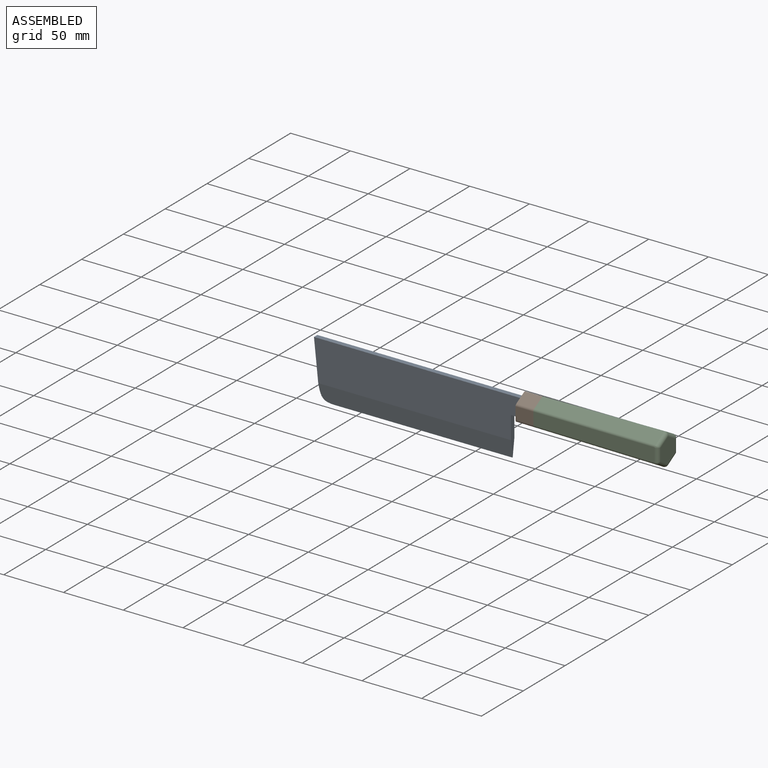
[diagram: assembled view]
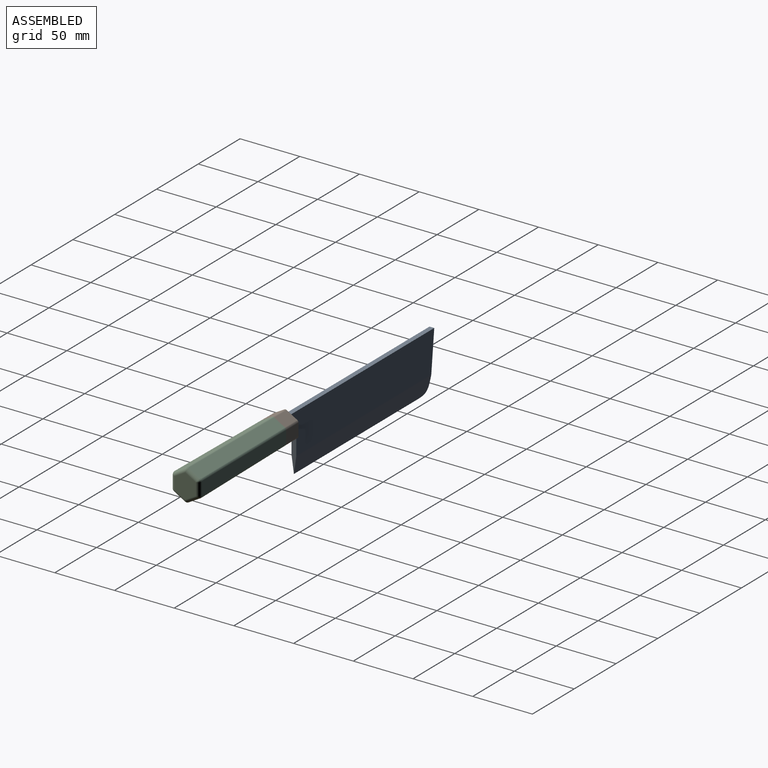
[diagram: assembled view, second angle]
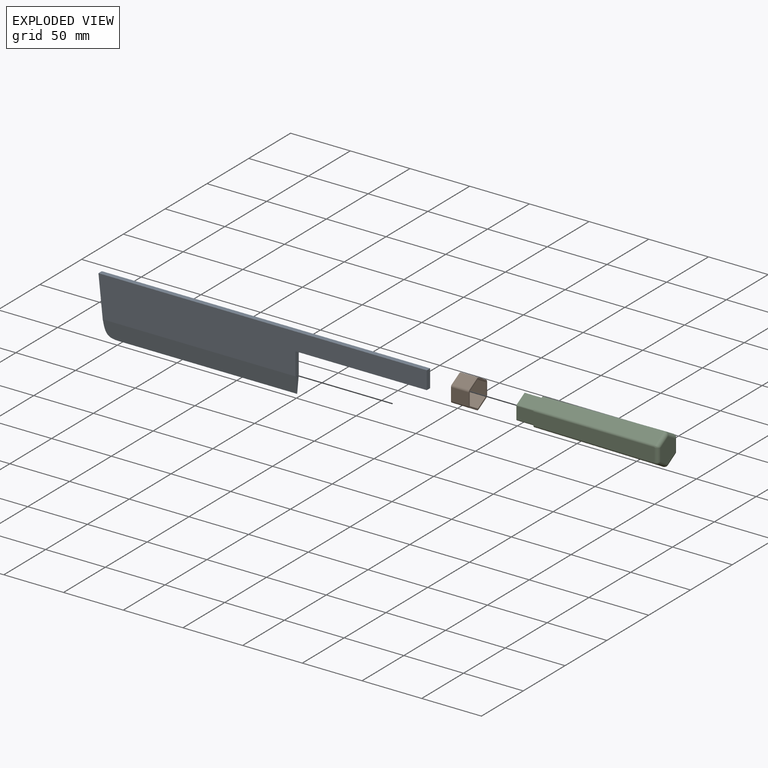
[diagram: exploded view]
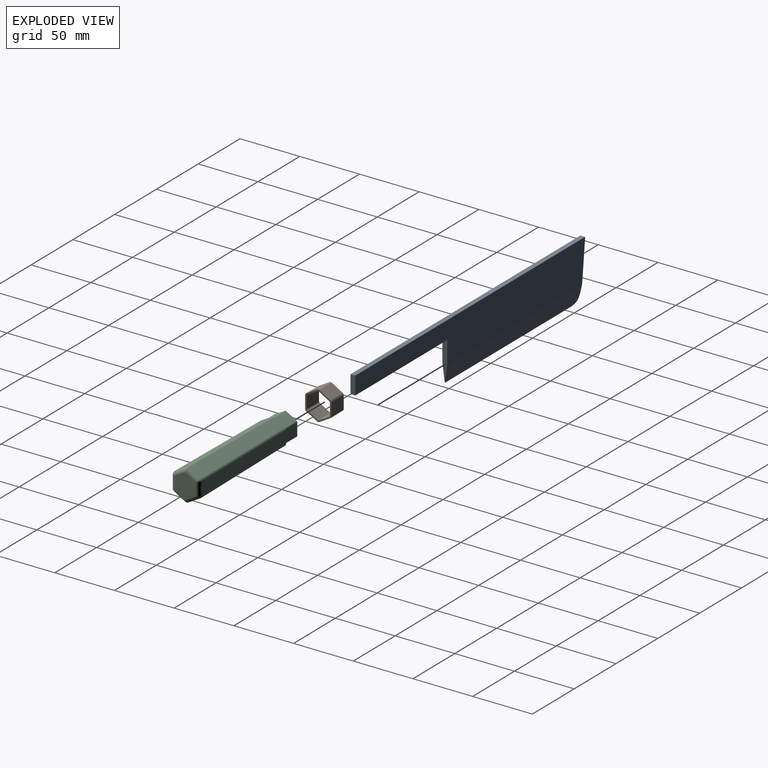
[diagram: exploded view, second angle]
ASSEMBLY  parts=3 mates=2
PART A: 10 faces, bbox 275x4x48 mm
  f0: plane 275x34mm, normal (0,-1,0), area 7199.2mm2, adj f1,f3,f5,f6,f7,f9
  f1: plane 37x4mm, normal (-0.99,0,-0.1), area 147.5mm2, adj f0,f2,f4,f5,f8,f9
  f2: extruded ~12.11x11mm, area 19mm2, adj f1,f8,f9
  f3: plane 33x4mm, normal (1,0,0), area 104mm2, adj f0,f4,f6,f8,f9
  f4: plane 275x34mm, normal (0,1,0), area 7199.2mm2, adj f1,f3,f5,f6,f7,f8
  f5: plane 275x4mm, normal (0,0,1), area 1100mm2, adj f0,f1,f4,f7
  f6: plane 110x4mm, normal (0,0,-1), area 440mm2, adj f0,f3,f4,f7
  f7: plane 15x4mm, normal (1,0,0), area 60mm2, adj f0,f4,f5,f6
  f8: plane 161.43x14mm, normal (0,0.99,-0.14), area 2258.3mm2, adj f1,f2,f3,f4,f9
  f9: plane 161.43x14mm, normal (0,-0.99,-0.14), area 2258.3mm2, adj f0,f1,f2,f3,f8
PART B: 26 faces, bbox 18x22x24.7 mm
  f0: plane 24.65x21.92mm, normal (1,0,0), area 89mm2, adj f1,f2,f3,f4,f5,f6,f7,f8
  f1: plane 15x10.19mm, normal (-0.01,-1,0), area 152.9mm2, adj f0,f2,f24,f25
  f2: bspline ~18x2.99mm, area 32.4mm2, adj f0,f1,f3,f25
  f3: plane 15x8.89mm, normal (-0.01,-0.5,0.87), area 152.9mm2, adj f0,f2,f4,f25
  f4: bspline ~18x3.45mm, area 32.4mm2, adj f0,f3,f5,f25
  f5: plane 15x8.89mm, normal (-0.01,0.5,0.87), area 152.9mm2, adj f0,f4,f6,f25
  f6: bspline ~18x2.99mm, area 32.4mm2, adj f0,f5,f7,f25
  f7: plane 15x10.19mm, normal (-0.01,1,0), area 152.9mm2, adj f0,f6,f8,f25
  f8: bspline ~18x2.99mm, area 32.4mm2, adj f0,f7,f9,f25
  f9: plane 15x8.89mm, normal (-0.01,0.5,-0.87), area 152.9mm2, adj f0,f8,f10,f25
  f10: bspline ~18x3.45mm, area 32.4mm2, adj f0,f9,f11,f25
  f11: plane 15x8.89mm, normal (-0.01,-0.5,-0.87), area 152.9mm2, adj f0,f10,f24,f25
  f12: bspline ~15x1mm, area 14.7mm2, adj f0,f13,f23,f25
  f13: plane 15x8.89mm, normal (-0.01,0.5,-0.87), area 152.9mm2, adj f0,f12,f14,f25
  f14: bspline ~15x0.87mm, area 14.7mm2, adj f0,f13,f15,f25
  f15: plane 15x10.19mm, normal (-0.01,1,0), area 152.9mm2, adj f0,f14,f16,f25
  f16: bspline ~18x0.88mm, area 14.7mm2, adj f0,f15,f17,f25
  f17: plane 15x8.89mm, normal (-0.01,0.5,0.87), area 152.9mm2, adj f0,f16,f18,f25
  f18: bspline ~15x1mm, area 14.7mm2, adj f0,f17,f19,f25
  f19: plane 15x8.89mm, normal (-0.01,-0.5,0.87), area 152.9mm2, adj f0,f18,f20,f25
  f20: bspline ~15x0.87mm, area 14.7mm2, adj f0,f19,f21,f25
  f21: plane 15x10.19mm, normal (-0.01,-1,0), area 152.9mm2, adj f0,f20,f22,f25
  f22: bspline ~18x0.88mm, area 14.7mm2, adj f0,f21,f23,f25
  f23: plane 15x8.89mm, normal (-0.01,-0.5,-0.87), area 152.9mm2, adj f0,f12,f22,f25
  f24: bspline ~18x2.99mm, area 32.4mm2, adj f0,f1,f11,f25
  f25: plane 24.39x21.65mm, normal (-1,0,0), area 70.6mm2, adj f1,f2,f3,f4,f5,f6,f7,f8
PART C: 44 faces, bbox 120x23.7x27.4 mm
  f0: plane 101.97x9.85mm, normal (-0.01,-0.5,0.87), area 1107mm2, adj f6,f11,f22,f37
  f1: plane 101.97x11.37mm, normal (-0.01,-1,0), area 1107mm2, adj f6,f7,f23,f37
  f2: plane 101.97x9.85mm, normal (-0.01,-0.5,-0.87), area 1107mm2, adj f7,f8,f19,f37
  f3: plane 101.97x9.85mm, normal (-0.01,0.5,-0.87), area 1107mm2, adj f8,f9,f15,f37
  f4: plane 101.97x11.37mm, normal (-0.01,1,0), area 1107mm2, adj f9,f10,f14,f37
  f5: plane 101.97x9.85mm, normal (-0.01,0.5,0.87), area 1107mm2, adj f10,f11,f18,f37
  f6: cylinder r=2mm len=101.98mm, axis (-1,0.01,-0.01), area 213.6mm2, adj f0,f1,f24,f37
  f7: cylinder r=2mm len=101.98mm, axis (-1,0.01,0.01), area 213.6mm2, adj f1,f2,f21,f37
  f8: cylinder r=2mm len=101.98mm, axis (-1,0,0.01), area 213.6mm2, adj f2,f3,f17,f37
  f9: cylinder r=2mm len=101.98mm, axis (-1,-0.01,0.01), area 213.6mm2, adj f3,f4,f13,f37
  f10: cylinder r=2mm len=101.98mm, axis (-1,-0.01,-0.01), area 213.6mm2, adj f4,f5,f16,f37
  f11: cylinder r=2mm len=101.98mm, axis (-1,0,-0.01), area 213.6mm2, adj f0,f5,f20,f37
  f12: plane 20.43x17.69mm, normal (1,0,0), area 271.1mm2, adj f14,f15,f18,f19,f22,f23
  f13: bspline ~3.48x3mm, area 6.4mm2, adj f9,f14,f15
  f14: cylinder r=3mm len=11.37mm, axis (0,0,1), area 51.9mm2, adj f4,f12,f13,f16
  f15: cylinder r=3mm len=11.35mm, axis (0,0.87,0.5), area 51.9mm2, adj f3,f12,f13,f17
  f16: bspline ~3.48x3mm, area 6.4mm2, adj f10,f14,f18
  f17: bspline ~3.48x3.46mm, area 6.4mm2, adj f8,f15,f19
  f18: cylinder r=3mm len=11.35mm, axis (0,-0.87,0.5), area 51.9mm2, adj f5,f12,f16,f20
  f19: cylinder r=3mm len=11.35mm, axis (0,0.87,-0.5), area 51.9mm2, adj f2,f12,f17,f21
  f20: bspline ~3.48x3.46mm, area 6.4mm2, adj f11,f18,f22
  f21: bspline ~3.48x3mm, area 6.4mm2, adj f7,f19,f23
  f22: cylinder r=3mm len=11.35mm, axis (0,-0.87,-0.5), area 51.9mm2, adj f0,f12,f20,f24
  f23: cylinder r=3mm len=11.37mm, axis (0,0,-1), area 51.9mm2, adj f1,f12,f21,f24
  f24: bspline ~3.48x3mm, area 6.4mm2, adj f6,f22,f23
  f25: extruded ~15x1mm, area 15.7mm2, adj f26,f36,f37,f43
  f26: plane 15x8.83mm, normal (0,-0.5,0.87), area 152.9mm2, adj f25,f27,f37,f43
  f27: extruded ~15x0.87mm, area 15.7mm2, adj f26,f28,f37,f43
  f28: plane 15x10.19mm, normal (0,-1,0), area 152.9mm2, adj f27,f29,f37,f43
  f29: extruded ~15x0.87mm, area 15.7mm2, adj f28,f30,f37,f43
  f30: plane 15x8.83mm, normal (0,-0.5,-0.87), area 152.9mm2, adj f29,f31,f37,f43
  f31: extruded ~15x1mm, area 15.7mm2, adj f30,f32,f37,f43
  f32: plane 15x8.83mm, normal (0,0.5,-0.87), area 152.9mm2, adj f31,f33,f37,f43
  f33: extruded ~15x0.87mm, area 15.7mm2, adj f32,f34,f37,f43
  f34: plane 15x10.19mm, normal (0,1,0), area 152.9mm2, adj f33,f35,f37,f43
  f35: extruded ~15x0.87mm, area 15.7mm2, adj f34,f36,f37,f43
  f36: plane 15x8.83mm, normal (0,0.5,0.87), area 152.9mm2, adj f25,f35,f37,f43
  f37: plane 24.69x21.92mm, normal (-1,0,0), area 80.4mm2, adj f0,f1,f2,f3,f4,f5,f6,f7
  f38: plane 15x4mm, normal (-1,0,0), area 60mm2, adj f39,f40,f41,f42
  f39: plane 100x4mm, normal (0,0,1), area 400mm2, adj f38,f40,f42,f43
  f40: plane 100x15mm, normal (0,1,0), area 1500mm2, adj f38,f39,f41,f43
  f41: plane 100x4mm, normal (0,0,-1), area 400mm2, adj f38,f40,f42,f43
  f42: plane 100x15mm, normal (0,-1,0), area 1500mm2, adj f38,f39,f41,f43
  f43: plane 22.38x19.65mm, normal (-1,0,0), area 274.1mm2, adj f25,f26,f27,f28,f29,f30,f31,f32
PLACE A at identity fixed
PLACE B t=(92.5,-2,16.5)mm
PLACE C t=(92.5,-2,16.5)mm
MATE fastened C.f38 <-> A.f7  axis (-1,0,0) through (192.5,-2,16.5)mm
MATE fastened B.f25 <-> C.f43  axis (-1,0,0) through (92.5,-2.5,27.56)mm
